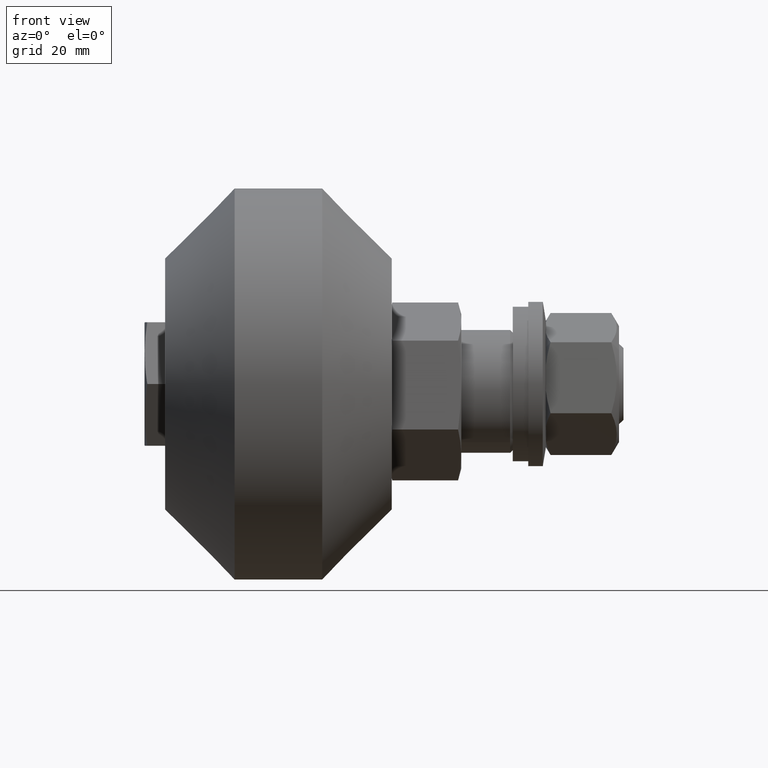
[diagram: clean part render]
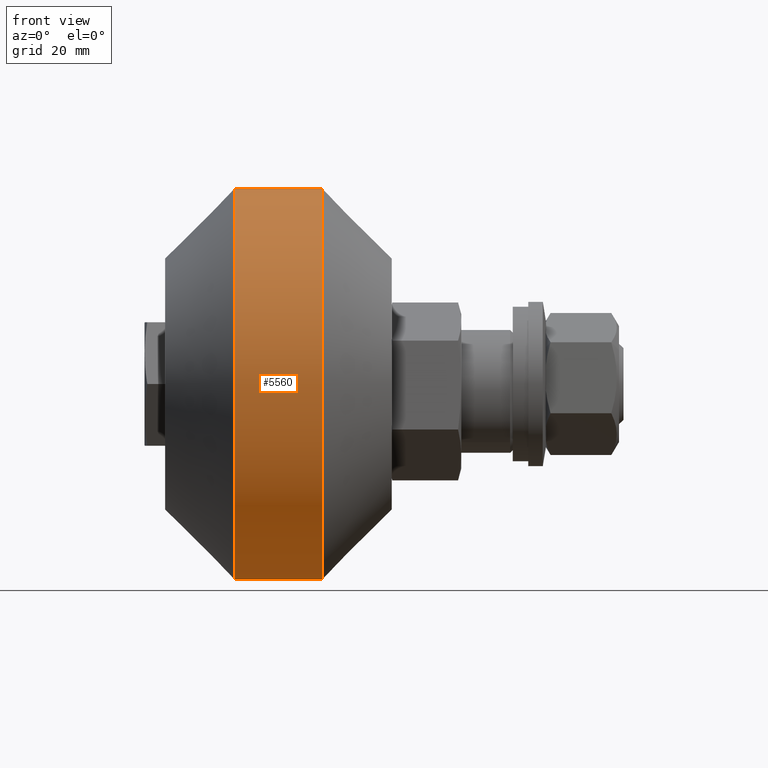
[diagram: same view with one face highlighted and labeled with its STEP entity id]
A machine part, front view. The second image highlights one B-rep face of the part: STEP entity #5560.
In plain terms, the highlighted cylindrical surface (bore or boss wall) has radius 38 mm, axis along (-1, -0, -0).
Its self-contained STEP definition (entity closure, byte-faithful):
#587=CYLINDRICAL_SURFACE('',#6300,38.);
#828=FACE_OUTER_BOUND('',#1137,.T.);
#1137=EDGE_LOOP('',(#4892,#4893,#4894,#4895));
#1514=LINE('',#9639,#1832);
#1832=VECTOR('',#7681,38.);
#2091=CIRCLE('',#6299,38.);
#2092=CIRCLE('',#6301,38.);
#2608=VERTEX_POINT('',#9633);
#2609=VERTEX_POINT('',#9637);
#3397=EDGE_CURVE('',#2608,#2608,#2091,.T.);
#3399=EDGE_CURVE('',#2609,#2609,#2092,.T.);
#3400=EDGE_CURVE('',#2609,#2608,#1514,.T.);
#4892=ORIENTED_EDGE('',*,*,#3399,.F.);
#4893=ORIENTED_EDGE('',*,*,#3400,.T.);
#4894=ORIENTED_EDGE('',*,*,#3397,.T.);
#4895=ORIENTED_EDGE('',*,*,#3400,.F.);
#5560=ADVANCED_FACE('',(#828),#587,.T.);
#6299=AXIS2_PLACEMENT_3D('',#9634,#7674,#7675);
#6300=AXIS2_PLACEMENT_3D('',#9636,#7677,#7678);
#6301=AXIS2_PLACEMENT_3D('',#9638,#7679,#7680);
#7674=DIRECTION('center_axis',(1.,0.,0.));
#7675=DIRECTION('ref_axis',(0.,1.,0.));
#7677=DIRECTION('center_axis',(1.,0.,0.));
#7678=DIRECTION('ref_axis',(0.,1.,0.));
#7679=DIRECTION('center_axis',(1.,0.,0.));
#7680=DIRECTION('ref_axis',(0.,1.,0.));
#7681=DIRECTION('',(-1.,0.,0.));
#9633=CARTESIAN_POINT('',(-8.5,-38.,-4.65365783675994E-15));
#9634=CARTESIAN_POINT('Origin',(-8.5,0.,0.));
#9636=CARTESIAN_POINT('Origin',(0.,0.,0.));
#9637=CARTESIAN_POINT('',(8.5,-38.,-4.65365783675994E-15));
#9638=CARTESIAN_POINT('Origin',(8.5,0.,0.));
#9639=CARTESIAN_POINT('',(0.,-38.,-4.65365783675994E-15));